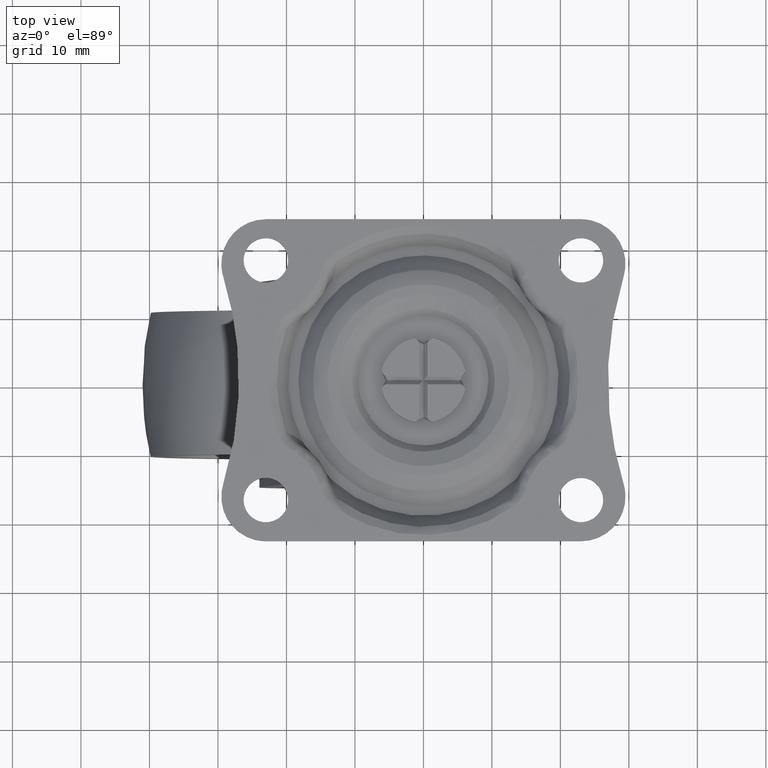
[diagram: clean part render]
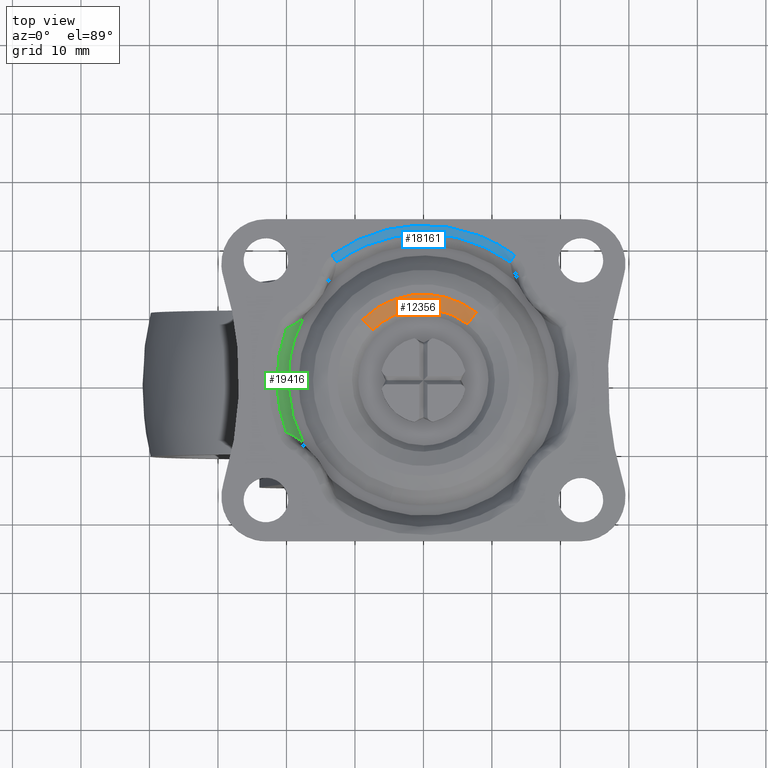
[diagram: same view with three faces highlighted in distinct colors, each labeled with its STEP entity id]
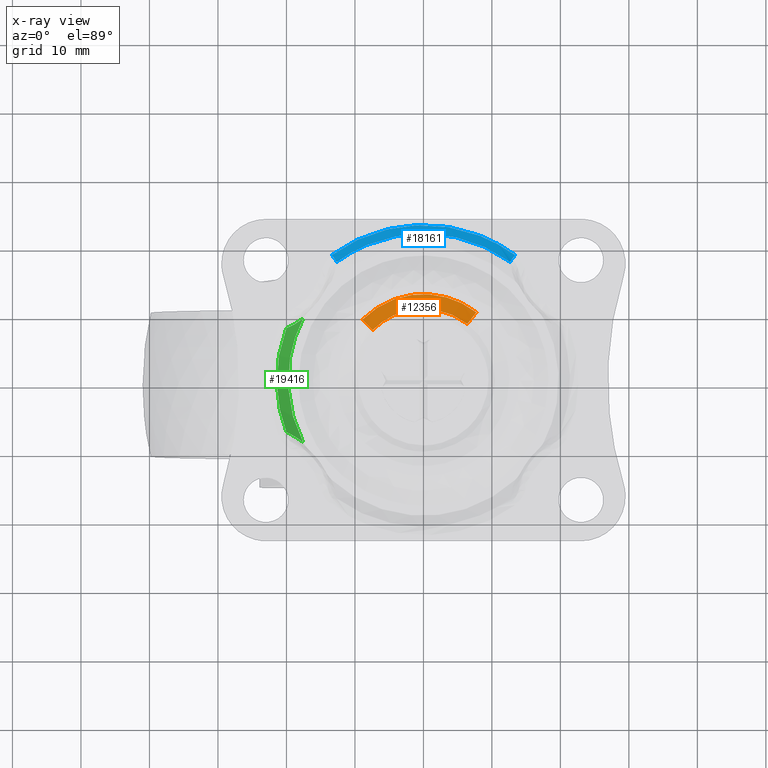
[diagram: x-ray of the same camera — body ghosted, the three highlighted faces saturated]
A machine part, top view with three faces highlighted in distinct colors.
The next image is the same camera in x-ray (body ghosted, the three faces saturated) — at least one of them is partly hidden behind the body in this view.
Their STEP definitions:

[orange] entity #12356 — the highlighted face is a freeform B-spline surface patch.
#10281=CARTESIAN_POINT('',(6.417380446830135,8.211036784646021,-0.878679655590314));
#10282=VERTEX_POINT('',#10281);
#10296=CARTESIAN_POINT('',(-7.415140516875937,7.322539722358437,-0.878679655956655));
#10297=VERTEX_POINT('',#10296);
#10298=CARTESIAN_POINT('',(6.417380446830135,8.211036784646021,-0.878679655590314));
#10299=CARTESIAN_POINT('',(3.589324426982886,10.421319343559661,-0.878679656440356));
#10300=CARTESIAN_POINT('',(0.0,10.421319343559659,-0.878679656440356));
#10301=CARTESIAN_POINT('',(-4.355058672102663,10.421319343559659,-0.878679656440356));
#10302=CARTESIAN_POINT('',(-7.415140516875937,7.322539722358437,-0.878679655956655));
#10310=(BOUNDED_CURVE()B_SPLINE_CURVE(2,(#10298,#10299,#10300,#10301,#10302),.UNSPECIFIED.,.F.,.U.)B_SPLINE_CURVE_WITH_KNOTS((3,2,3),(0.643432082112932,0.750000000000000,0.875948062567883),.UNSPECIFIED.)CURVE()GEOMETRIC_REPRESENTATION_ITEM()RATIONAL_B_SPLINE_CURVE((0.856737647416686,0.875147918031236,1.0,0.852442666204699,0.853561814883002))REPRESENTATION_ITEM(''));
#10311=EDGE_CURVE('',#10282,#10297,#10310,.T.);
#12236=CARTESIAN_POINT('',(7.723675670354493,9.882441218438832,-4.714846E-016));
#12237=VERTEX_POINT('',#12236);
#12253=CARTESIAN_POINT('',(6.417380446830136,8.211036784646021,-0.878679655590314));
#12254=CARTESIAN_POINT('',(6.958465645138279,8.903355169778299,-7.983779E-010));
#12255=CARTESIAN_POINT('',(7.723675670354493,9.882441218438830,-4.714846E-016));
#12263=(BOUNDED_CURVE()B_SPLINE_CURVE(2,(#12253,#12254,#12255),.UNSPECIFIED.,.F.,.U.)B_SPLINE_CURVE_WITH_KNOTS((3,3),(-1.565382960960373,-0.443824321626295),.UNSPECIFIED.)CURVE()GEOMETRIC_REPRESENTATION_ITEM()RATIONAL_B_SPLINE_CURVE((0.884131369639549,0.816320596789001,0.883027068676898))REPRESENTATION_ITEM(''));
#12264=EDGE_CURVE('',#10282,#12237,#12263,.T.);
#12271=CARTESIAN_POINT('',(-8.924535623545339,8.813085397138408,-5.113113E-016));
#12272=VERTEX_POINT('',#12271);
#12273=CARTESIAN_POINT('',(-7.415140516875937,7.322539722358438,-0.878679655956655));
#12274=CARTESIAN_POINT('',(-8.040352441318182,7.939943956461111,-2.548201E-010));
#12275=CARTESIAN_POINT('',(-8.924535623545339,8.813085397138408,-5.113113E-016));
#12283=(BOUNDED_CURVE()B_SPLINE_CURVE(2,(#12273,#12274,#12275),.UNSPECIFIED.,.F.,.U.)B_SPLINE_CURVE_WITH_KNOTS((3,3),(-1.565382961466818,-0.443824320985704),.UNSPECIFIED.)CURVE()GEOMETRIC_REPRESENTATION_ITEM()RATIONAL_B_SPLINE_CURVE((0.923967181562379,0.853101096569044,0.922813124745482))REPRESENTATION_ITEM(''));
#12284=EDGE_CURVE('',#10297,#12272,#12283,.T.);
#12319=CARTESIAN_POINT('',(-7.358806013073449,7.266908727783717,-0.960924598578788));
#12320=CARTESIAN_POINT('',(-0.887684100315167,13.819864410421035,-0.960924598578788));
#12321=CARTESIAN_POINT('',(6.368626152229495,8.148655676191240,-0.960924598578788));
#12322=CARTESIAN_POINT('',(-8.025577589041015,7.925353613574789,0.050345567904756));
#12323=CARTESIAN_POINT('',(-0.968115970033838,15.072063850958525,0.050345567904756));
#12324=CARTESIAN_POINT('',(6.945678854627984,8.886994474303108,0.050345567904756));
#12325=CARTESIAN_POINT('',(-9.005856510467643,8.893390743120261,-0.002177796328273));
#12326=CARTESIAN_POINT('',(-1.086365861507887,16.913031224529991,-0.002177796328273));
#12327=CARTESIAN_POINT('',(7.794054251993503,9.972490597334826,-0.002177796328273));
#12335=(BOUNDED_SURFACE()B_SPLINE_SURFACE(2,2,((#12319,#12322,#12325),(#12320,#12323,#12326),(#12321,#12324,#12327)),.UNSPECIFIED.,.F.,.F.,.U.)B_SPLINE_SURFACE_WITH_KNOTS((3,3),(3,3),(0.0,19.271869799386611),(0.0,2.625404555603456),.UNSPECIFIED.)GEOMETRIC_REPRESENTATION_ITEM()RATIONAL_B_SPLINE_SURFACE(((0.931397446439200,0.845728468278214,0.930128116196841),(0.680421450043569,0.617836985627331,0.679494155763998),(0.891241287015899,0.809265831054073,0.890026682527586)))REPRESENTATION_ITEM('')SURFACE());
#12336=CARTESIAN_POINT('',(-8.924535623545339,8.813085397138408,-5.113113E-016));
#12337=CARTESIAN_POINT('',(-5.241556269380681,12.542639687119298,0.0));
#12338=CARTESIAN_POINT('',(0.0,12.542639687119300,0.0));
#12339=CARTESIAN_POINT('',(4.319952351850633,12.542639687119305,0.0));
#12340=CARTESIAN_POINT('',(7.723675670354493,9.882441218438832,-4.714846E-016));
#12348=(BOUNDED_CURVE()B_SPLINE_CURVE(2,(#12336,#12337,#12338,#12339,#12340),.UNSPECIFIED.,.F.,.U.)B_SPLINE_CURVE_WITH_KNOTS((3,2,3),(0.124051937432107,0.250000000000000,0.356567917886601),.UNSPECIFIED.)CURVE()GEOMETRIC_REPRESENTATION_ITEM()RATIONAL_B_SPLINE_CURVE((0.853561814883002,0.852442666204687,1.0,0.875147918031783,0.856737647416847))REPRESENTATION_ITEM(''));
#12349=EDGE_CURVE('',#12272,#12237,#12348,.T.);
#12350=ORIENTED_EDGE('',*,*,#12349,.F.);
#12351=ORIENTED_EDGE('',*,*,#12284,.F.);
#12352=ORIENTED_EDGE('',*,*,#10311,.F.);
#12353=ORIENTED_EDGE('',*,*,#12264,.T.);
#12354=EDGE_LOOP('',(#12350,#12351,#12352,#12353));
#12355=FACE_OUTER_BOUND('',#12354,.T.);
#12356=ADVANCED_FACE('',(#12355),#12335,.T.);

[blue] entity #18161 — the highlighted face is a freeform B-spline surface patch.
#17856=CARTESIAN_POINT('',(13.369151126432101,18.259989189503852,0.0));
#17857=VERTEX_POINT('',#17856);
#17858=CARTESIAN_POINT('',(12.643214794767101,17.268483487824451,-0.639806483455010));
#17859=VERTEX_POINT('',#17858);
#17860=CARTESIAN_POINT('',(13.369151126432101,18.259989189503852,0.0));
#17861=CARTESIAN_POINT('',(12.907788746667787,17.629846558362203,0.0));
#17862=CARTESIAN_POINT('',(12.643214794767109,17.268483487824451,-0.639806483455016));
#17870=(BOUNDED_CURVE()B_SPLINE_CURVE(2,(#17860,#17861,#17862),.UNSPECIFIED.,.F.,.U.)CURVE()GEOMETRIC_REPRESENTATION_ITEM()QUASI_UNIFORM_CURVE()RATIONAL_B_SPLINE_CURVE((1.0,0.886978676283518,1.0))REPRESENTATION_ITEM(''));
#17871=EDGE_CURVE('',#17857,#17859,#17870,.T.);
#18098=CARTESIAN_POINT('',(-13.605863602697561,16.471229761384009,-0.697018556269581));
#18099=CARTESIAN_POINT('',(-0.000000345579852,27.710191414830277,-0.697018556269581));
#18100=CARTESIAN_POINT('',(13.605863191864941,16.471230100747409,-0.697018556269581));
#18101=CARTESIAN_POINT('',(-13.902685832208808,16.830562125968111,0.038366783875755));
#18102=CARTESIAN_POINT('',(-0.000000353118939,28.314710248482470,0.038366783875755));
#18103=CARTESIAN_POINT('',(13.902685412413566,16.830562472734972,0.038366783875755));
#18104=CARTESIAN_POINT('',(-14.456577162732028,17.501101801676594,-0.001579679575700));
#18105=CARTESIAN_POINT('',(-0.000000367187408,29.442785263784721,-0.001579679575700));
#18106=CARTESIAN_POINT('',(14.456576726211891,17.501102162258857,-0.001579679575700));
#18114=(BOUNDED_SURFACE()B_SPLINE_SURFACE(2,2,((#18098,#18101,#18104),(#18099,#18102,#18105),(#18100,#18103,#18106)),.UNSPECIFIED.,.F.,.F.,.U.)B_SPLINE_SURFACE_WITH_KNOTS((3,3),(3,3),(0.0,32.652147213302662),(0.0,1.615106945779397),.UNSPECIFIED.)GEOMETRIC_REPRESENTATION_ITEM()RATIONAL_B_SPLINE_SURFACE(((0.858318454255520,0.741838573944912,0.857171695394795),(0.661746571976375,0.571942885340486,0.660862443549209),(0.858318446556828,0.741838567290987,0.857171687706389)))REPRESENTATION_ITEM('')SURFACE());
#18115=CARTESIAN_POINT('',(-13.369151126431801,18.259989189504100,0.0));
#18116=VERTEX_POINT('',#18115);
#18117=CARTESIAN_POINT('',(-12.643214794767220,17.268483487824550,-0.639806483454819));
#18118=VERTEX_POINT('',#18117);
#18119=CARTESIAN_POINT('',(-13.369151126431801,18.259989189504100,0.0));
#18120=CARTESIAN_POINT('',(-12.907788746667586,17.629846558362573,0.0));
#18121=CARTESIAN_POINT('',(-12.643214794767220,17.268483487824550,-0.639806483454819));
#18129=(BOUNDED_CURVE()B_SPLINE_CURVE(2,(#18119,#18120,#18121),.UNSPECIFIED.,.F.,.U.)CURVE()GEOMETRIC_REPRESENTATION_ITEM()QUASI_UNIFORM_CURVE()RATIONAL_B_SPLINE_CURVE((1.0,0.886978676283553,1.0))REPRESENTATION_ITEM(''));
#18130=EDGE_CURVE('',#18116,#18118,#18129,.T.);
#18131=ORIENTED_EDGE('',*,*,#18130,.T.);
#18132=CARTESIAN_POINT('',(12.643214794767120,17.268483487824462,-0.639806483455012));
#18133=CARTESIAN_POINT('',(-2.428613E-014,26.525282468425445,-0.639806483455012));
#18134=CARTESIAN_POINT('',(-12.643214794767220,17.268483487824550,-0.639806483454819));
#18142=(BOUNDED_CURVE()B_SPLINE_CURVE(2,(#18132,#18133,#18134),.UNSPECIFIED.,.F.,.U.)CURVE()GEOMETRIC_REPRESENTATION_ITEM()QUASI_UNIFORM_CURVE()RATIONAL_B_SPLINE_CURVE((1.0,0.806857966057767,1.0))REPRESENTATION_ITEM(''));
#18143=EDGE_CURVE('',#17859,#18118,#18142,.T.);
#18144=ORIENTED_EDGE('',*,*,#18143,.F.);
#18145=ORIENTED_EDGE('',*,*,#17871,.F.);
#18146=CARTESIAN_POINT('',(-13.369151126431790,18.259989189504079,0.0));
#18147=CARTESIAN_POINT('',(2.376571E-013,28.048286432533811,0.0));
#18148=CARTESIAN_POINT('',(13.369151126432101,18.259989189503852,0.0));
#18156=(BOUNDED_CURVE()B_SPLINE_CURVE(2,(#18146,#18147,#18148),.UNSPECIFIED.,.F.,.U.)CURVE()GEOMETRIC_REPRESENTATION_ITEM()QUASI_UNIFORM_CURVE()RATIONAL_B_SPLINE_CURVE((1.0,0.806857966057773,1.0))REPRESENTATION_ITEM(''));
#18157=EDGE_CURVE('',#18116,#17857,#18156,.T.);
#18158=ORIENTED_EDGE('',*,*,#18157,.F.);
#18159=EDGE_LOOP('',(#18131,#18144,#18145,#18158));
#18160=FACE_OUTER_BOUND('',#18159,.T.);
#18161=ADVANCED_FACE('',(#18160),#18114,.T.);

[green] entity #19416 — the highlighted face is a freeform B-spline surface patch.
#17119=CARTESIAN_POINT('',(-20.014852203810900,-7.580045750224030,-0.639806483455010));
#17120=VERTEX_POINT('',#17119);
#17359=CARTESIAN_POINT('',(-17.571146862651698,-9.017610433541989,-3.0));
#17360=VERTEX_POINT('',#17359);
#17376=CARTESIAN_POINT('',(-20.014852203810900,-7.580045750224030,-0.639806483455010));
#17377=CARTESIAN_POINT('',(-19.816785658675819,-7.665984574123653,-0.860936113684535));
#17378=CARTESIAN_POINT('',(-19.617682374875589,-7.759109932737323,-1.077567754274474));
#17379=CARTESIAN_POINT('',(-19.216590049990511,-7.961519052616676,-1.500187601162786));
#17380=CARTESIAN_POINT('',(-19.014605109035259,-8.070791897344002,-1.706185052903843));
#17381=CARTESIAN_POINT('',(-18.708639344021389,-8.248712949471477,-2.005487428724960));
#17382=CARTESIAN_POINT('',(-18.606202858154141,-8.310336587184017,-2.103576078384726));
#17383=CARTESIAN_POINT('',(-18.400983556119911,-8.438142395242736,-2.295386536824302));
#17384=CARTESIAN_POINT('',(-18.298109127801101,-8.504376708941951,-2.389199322221841));
#17385=CARTESIAN_POINT('',(-17.988500866047129,-8.710623249008926,-2.663721040953621));
#17386=CARTESIAN_POINT('',(-17.780795679962360,-8.858127154871959,-2.837568746413255));
#17387=CARTESIAN_POINT('',(-17.571146862651698,-9.017610433541989,-3.0));
#17388=B_SPLINE_CURVE_WITH_KNOTS('',3,(#17376,#17377,#17378,#17379,#17380,#17381,#17382,#17383,#17384,#17385,#17386,#17387),.UNSPECIFIED.,.F.,.U.,(4,2,2,2,2,4),(0.0,0.250000000000000,0.500000000000001,0.625000000000000,0.749999999999999,1.0),.UNSPECIFIED.);
#17389=EDGE_CURVE('',#17120,#17360,#17388,.T.);
#17425=CARTESIAN_POINT('',(-20.014852203810900,7.580045750224030,-0.639806483455010));
#17426=VERTEX_POINT('',#17425);
#17456=CARTESIAN_POINT('',(-20.014852203810921,7.580045750224040,-0.639806483455012));
#17457=CARTESIAN_POINT('',(-22.885575054542201,1.040834E-014,-0.639806483455012));
#17458=CARTESIAN_POINT('',(-20.014852203810921,-7.580045750224031,-0.639806483455012));
#17466=(BOUNDED_CURVE()B_SPLINE_CURVE(2,(#17456,#17457,#17458),.UNSPECIFIED.,.F.,.U.)CURVE()GEOMETRIC_REPRESENTATION_ITEM()QUASI_UNIFORM_CURVE()RATIONAL_B_SPLINE_CURVE((1.0,0.935180147781942,1.0))REPRESENTATION_ITEM(''));
#17467=EDGE_CURVE('',#17426,#17120,#17466,.T.);
#17985=CARTESIAN_POINT('',(-17.571146862651901,9.017610433541631,-3.0));
#17986=VERTEX_POINT('',#17985);
#18016=CARTESIAN_POINT('',(-17.571146862651901,9.017610433541631,-3.0));
#18017=CARTESIAN_POINT('',(-17.780798092051970,8.858125319956052,-2.837566877579723));
#18018=CARTESIAN_POINT('',(-17.988498961927942,8.710624858646607,-2.663722343201961));
#18019=CARTESIAN_POINT('',(-18.298092842533819,8.504387386838150,-2.389213954977971));
#18020=CARTESIAN_POINT('',(-18.400961147023121,8.438156770200120,-2.295407028855527));
#18021=CARTESIAN_POINT('',(-18.606165789009079,8.310359254013664,-2.103611178209594));
#18022=CARTESIAN_POINT('',(-18.708588742349630,8.248742959804885,-2.005536325625053));
#18023=CARTESIAN_POINT('',(-19.014575582777798,8.070807897152426,-1.706215141260673));
#18024=CARTESIAN_POINT('',(-19.216570668818271,7.961529135500583,-1.500207740650817));
#18025=CARTESIAN_POINT('',(-19.617677089540852,7.759112297694259,-1.077573605182662));
#18026=CARTESIAN_POINT('',(-19.816784313566561,7.665985157751284,-0.860937615419776));
#18027=CARTESIAN_POINT('',(-20.014852203810900,7.580045750224030,-0.639806483455010));
#18028=B_SPLINE_CURVE_WITH_KNOTS('',3,(#18016,#18017,#18018,#18019,#18020,#18021,#18022,#18023,#18024,#18025,#18026,#18027),.UNSPECIFIED.,.F.,.U.,(4,2,2,2,2,4),(0.0,0.250000000000003,0.375000000000003,0.500000000000003,0.750000000000002,1.0),.UNSPECIFIED.);
#18029=EDGE_CURVE('',#17986,#17426,#18028,.T.);
#19308=CARTESIAN_POINT('',(-17.571146862651691,-9.017610433542000,-3.0));
#19309=CARTESIAN_POINT('',(-22.199034761304862,-2.428613E-013,-3.000000000000000));
#19310=CARTESIAN_POINT('',(-17.571146862651890,9.017610433541616,-3.0));
#19318=(BOUNDED_CURVE()B_SPLINE_CURVE(2,(#19308,#19309,#19310),.UNSPECIFIED.,.F.,.U.)CURVE()GEOMETRIC_REPRESENTATION_ITEM()QUASI_UNIFORM_CURVE()RATIONAL_B_SPLINE_CURVE((1.0,0.889678322159584,1.0))REPRESENTATION_ITEM(''));
#19319=EDGE_CURVE('',#17360,#17986,#19318,.T.);
#19396=CARTESIAN_POINT('',(-17.455204551691171,-9.151423728581689,-3.059004837913625));
#19397=CARTESIAN_POINT('',(-18.992510905389022,-9.957403503935673,-0.579326524593545));
#19398=CARTESIAN_POINT('',(-22.470473225989512,0.414578588429819,-3.059004837913625));
#19399=CARTESIAN_POINT('',(-24.449481902663205,0.451091153849084,-0.579326524593545));
#19400=CARTESIAN_POINT('',(-17.105753810638255,9.789070883963538,-3.059004837913625));
#19401=CARTESIAN_POINT('',(-18.612283507268916,10.651209211941927,-0.579326524593545));
#19409=(BOUNDED_SURFACE()B_SPLINE_SURFACE(1,2,((#19396,#19398,#19400),(#19397,#19399,#19401)),.UNSPECIFIED.,.F.,.F.,.U.)B_SPLINE_SURFACE_WITH_KNOTS((2,2),(3,3),(0.0,3.026833124067027),(0.0,21.963482581766620),.UNSPECIFIED.)GEOMETRIC_REPRESENTATION_ITEM()RATIONAL_B_SPLINE_SURFACE(((1.0,0.875863369335444,0.997537347677534),(1.0,0.875863369335444,0.997537347677534)))REPRESENTATION_ITEM('')SURFACE());
#19410=ORIENTED_EDGE('',*,*,#19319,.T.);
#19411=ORIENTED_EDGE('',*,*,#18029,.T.);
#19412=ORIENTED_EDGE('',*,*,#17467,.T.);
#19413=ORIENTED_EDGE('',*,*,#17389,.T.);
#19414=EDGE_LOOP('',(#19410,#19411,#19412,#19413));
#19415=FACE_OUTER_BOUND('',#19414,.T.);
#19416=ADVANCED_FACE('',(#19415),#19409,.F.);